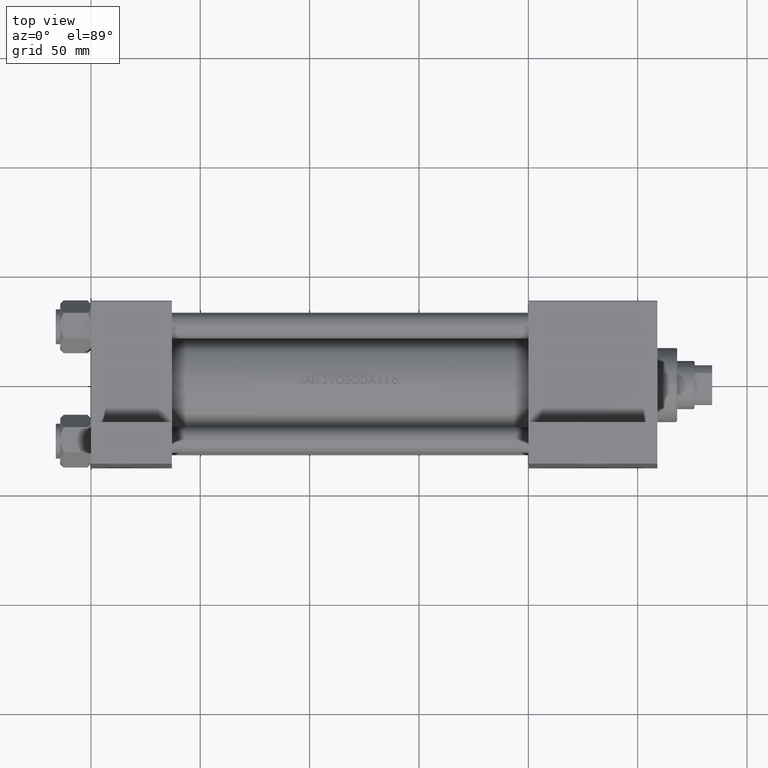
[diagram: clean part render]
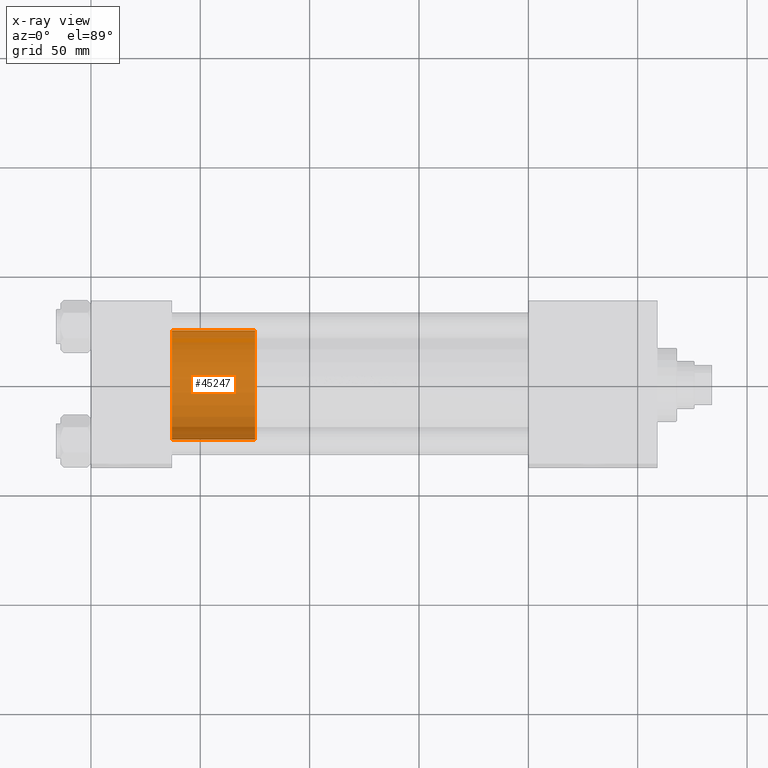
[diagram: x-ray — body ghosted, one internal face saturated and labeled with its STEP entity id]
A machine part, top view, then the same camera in x-ray: the body is ghosted and one INTERNAL B-rep face — a face not visible from any outside direction — is saturated and labeled: STEP entity #45247.
In plain terms, the highlighted cylindrical surface (partial cylindrical patch) has radius 25 mm, axis along (-1, 0, 0).
Its self-contained STEP definition (entity closure, byte-faithful):
#342 = CARTESIAN_POINT ( 'NONE',  ( 25.00000000000000000, 3.061616997868383043E-15, 38.00000000000000000 ) ) ;
#2895 = EDGE_CURVE ( 'NONE', #28878, #14858, #21762, .T. ) ;
#3101 = ORIENTED_EDGE ( 'NONE', *, *, #17022, .T. ) ;
#7508 = EDGE_CURVE ( 'NONE', #43186, #17374, #46656, .T. ) ;
#8751 = CYLINDRICAL_SURFACE ( 'NONE', #28484, 25.00000000000000000 ) ;
#9398 = ORIENTED_EDGE ( 'NONE', *, *, #7508, .T. ) ;
#9625 = CARTESIAN_POINT ( 'NONE',  ( 25.00000000000000000, 3.061616997868383043E-15, 38.00000000000000000 ) ) ;
#12371 = CIRCLE ( 'NONE', #20823, 25.00000000000000000 ) ;
#13156 = AXIS2_PLACEMENT_3D ( 'NONE', #25408, #25635, #32610 ) ;
#14858 = VERTEX_POINT ( 'NONE', #46129 ) ;
#15041 = DIRECTION ( 'NONE',  ( -0.000000000000000000, -0.000000000000000000, -1.000000000000000000 ) ) ;
#15873 = VECTOR ( 'NONE', #27919, 1000.000000000000000 ) ;
#17022 = EDGE_CURVE ( 'NONE', #17374, #14858, #23916, .T. ) ;
#17290 = EDGE_CURVE ( 'NONE', #43186, #28878, #12371, .T. ) ;
#17374 = VERTEX_POINT ( 'NONE', #38507 ) ;
#18153 = DIRECTION ( 'NONE',  ( -0.000000000000000000, -0.000000000000000000, -1.000000000000000000 ) ) ;
#20823 = AXIS2_PLACEMENT_3D ( 'NONE', #47440, #29408, #44057 ) ;
#20982 = CARTESIAN_POINT ( 'NONE',  ( -25.00000000000000000, 0.000000000000000000, 38.00000000000000000 ) ) ;
#21762 = LINE ( 'NONE', #28980, #44862 ) ;
#23451 = CARTESIAN_POINT ( 'NONE',  ( 0.000000000000000000, 0.000000000000000000, 38.00000000000000000 ) ) ;
#23916 = CIRCLE ( 'NONE', #13156, 25.00000000000000000 ) ;
#25408 = CARTESIAN_POINT ( 'NONE',  ( 0.000000000000000000, 0.000000000000000000, 0.000000000000000000 ) ) ;
#25635 = DIRECTION ( 'NONE',  ( 0.000000000000000000, 0.000000000000000000, 1.000000000000000000 ) ) ;
#27919 = DIRECTION ( 'NONE',  ( -0.000000000000000000, -0.000000000000000000, -1.000000000000000000 ) ) ;
#28484 = AXIS2_PLACEMENT_3D ( 'NONE', #23451, #15041, #29705 ) ;
#28878 = VERTEX_POINT ( 'NONE', #20982 ) ;
#28980 = CARTESIAN_POINT ( 'NONE',  ( -25.00000000000000000, 0.000000000000000000, 38.00000000000000000 ) ) ;
#29408 = DIRECTION ( 'NONE',  ( 0.000000000000000000, 0.000000000000000000, 1.000000000000000000 ) ) ;
#29705 = DIRECTION ( 'NONE',  ( -1.000000000000000000, 0.000000000000000000, 0.000000000000000000 ) ) ;
#32610 = DIRECTION ( 'NONE',  ( 1.000000000000000000, 0.000000000000000000, 0.000000000000000000 ) ) ;
#38507 = CARTESIAN_POINT ( 'NONE',  ( 25.00000000000000000, 3.061616997868383043E-15, 0.000000000000000000 ) ) ;
#38686 = ORIENTED_EDGE ( 'NONE', *, *, #2895, .F. ) ;
#38705 = EDGE_LOOP ( 'NONE', ( #40543, #9398, #3101, #38686 ) ) ;
#40543 = ORIENTED_EDGE ( 'NONE', *, *, #17290, .F. ) ;
#43186 = VERTEX_POINT ( 'NONE', #342 ) ;
#44057 = DIRECTION ( 'NONE',  ( 1.000000000000000000, 0.000000000000000000, 0.000000000000000000 ) ) ;
#44597 = FACE_OUTER_BOUND ( 'NONE', #38705, .T. ) ;
#44862 = VECTOR ( 'NONE', #18153, 1000.000000000000000 ) ;
#45247 = ADVANCED_FACE ( 'NONE', ( #44597 ), #8751, .T. ) ;
#46129 = CARTESIAN_POINT ( 'NONE',  ( -25.00000000000000000, 0.000000000000000000, 0.000000000000000000 ) ) ;
#46656 = LINE ( 'NONE', #9625, #15873 ) ;
#47440 = CARTESIAN_POINT ( 'NONE',  ( 0.000000000000000000, 0.000000000000000000, 38.00000000000000000 ) ) ;